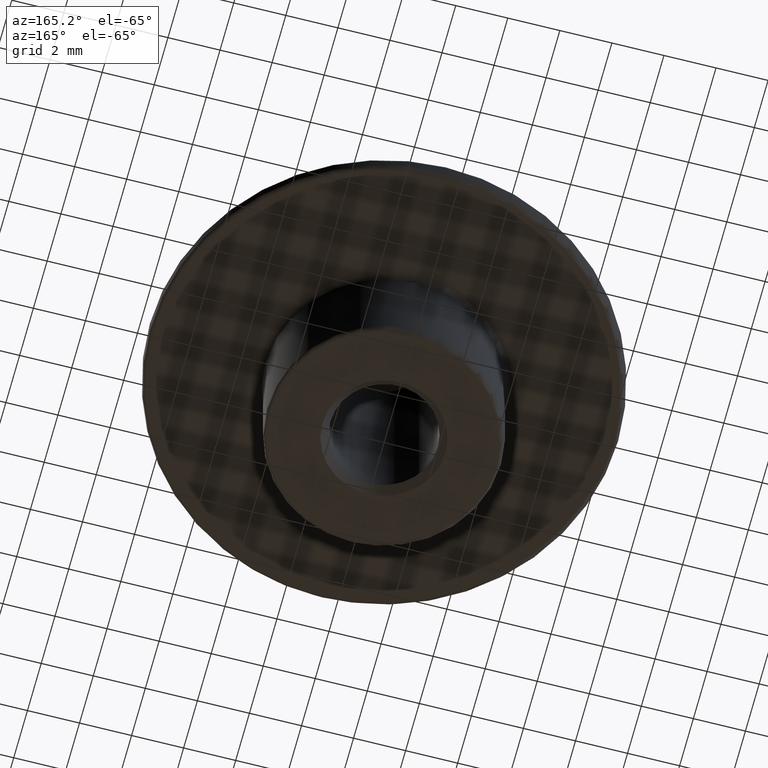
[diagram: clean part render]
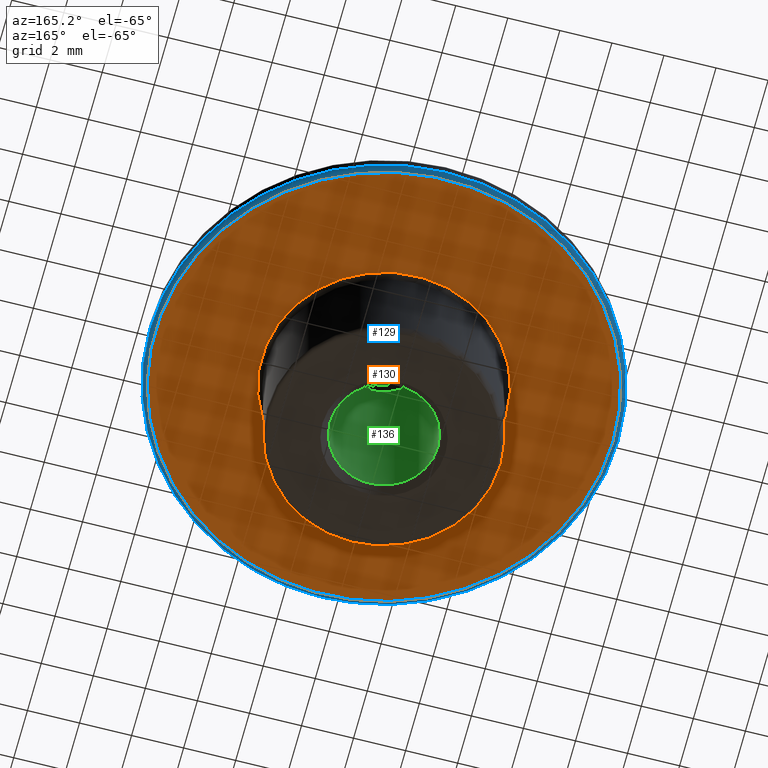
[diagram: same view with three faces highlighted in distinct colors, each labeled with its STEP entity id]
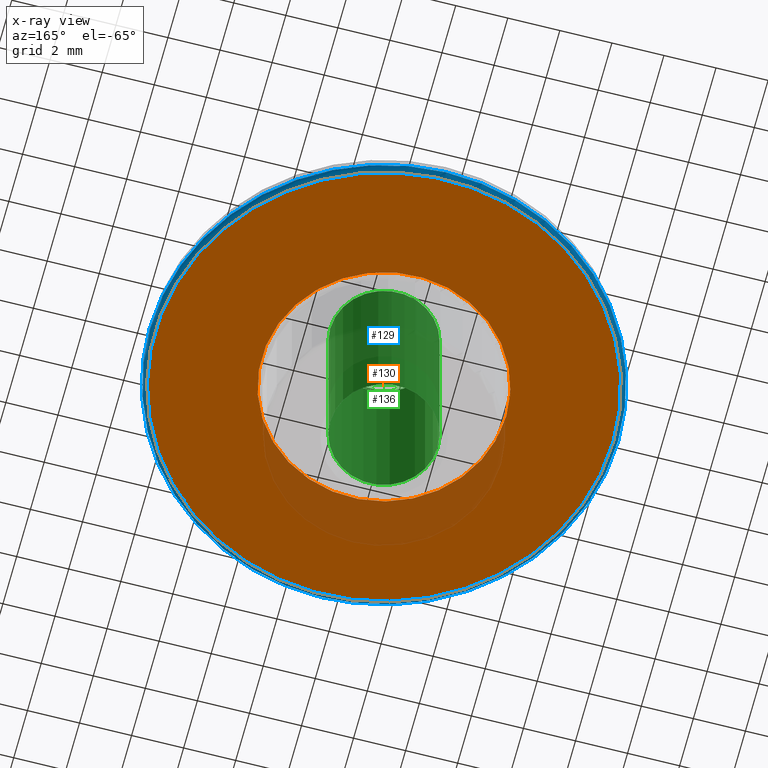
[diagram: x-ray of the same camera — body ghosted, the three highlighted faces saturated]
A machine part, auxiliary view with three faces highlighted in distinct colors.
The next image is the same camera in x-ray (body ghosted, the three faces saturated) — at least one of them is partly hidden behind the body in this view.
Their STEP definitions:

[orange] entity #130 — the highlighted planar face has unit normal (0, 0, 1).
#16=PLANE('',#148);
#26=FACE_BOUND('',#53,.T.);
#37=FACE_OUTER_BOUND('',#52,.T.);
#52=EDGE_LOOP('',(#107));
#53=EDGE_LOOP('',(#108));
#70=CIRCLE('',#147,8.79992883305196);
#71=CIRCLE('',#149,4.7);
#81=VERTEX_POINT('',#222);
#82=VERTEX_POINT('',#225);
#92=EDGE_CURVE('',#81,#81,#70,.T.);
#93=EDGE_CURVE('',#82,#82,#71,.T.);
#107=ORIENTED_EDGE('',*,*,#92,.F.);
#108=ORIENTED_EDGE('',*,*,#93,.F.);
#130=ADVANCED_FACE('',(#37,#26),#16,.F.);
#147=AXIS2_PLACEMENT_3D('',#223,#179,#180);
#148=AXIS2_PLACEMENT_3D('',#224,#181,#182);
#149=AXIS2_PLACEMENT_3D('',#226,#183,#184);
#179=DIRECTION('center_axis',(0.,0.,1.));
#180=DIRECTION('ref_axis',(1.,0.,0.));
#181=DIRECTION('center_axis',(0.,0.,1.));
#182=DIRECTION('ref_axis',(1.,0.,0.));
#183=DIRECTION('center_axis',(0.,0.,-1.));
#184=DIRECTION('ref_axis',(1.,0.,0.));
#222=CARTESIAN_POINT('',(-8.79992883305196,-1.07768046781216E-15,6.5));
#223=CARTESIAN_POINT('Origin',(0.,0.,6.5));
#224=CARTESIAN_POINT('Origin',(5.03044747988501E-16,2.05598482169455E-16,
6.5));
#225=CARTESIAN_POINT('',(-4.7,5.75583995599256E-16,6.5));
#226=CARTESIAN_POINT('Origin',(0.,0.,6.5));

[blue] entity #129 — the highlighted toroidal blend (fillet) surface has major radius 8.7999 mm and minor (blend) radius 0.2 mm.
#25=FACE_BOUND('',#51,.T.);
#36=FACE_OUTER_BOUND('',#50,.T.);
#50=EDGE_LOOP('',(#105));
#51=EDGE_LOOP('',(#106));
#69=CIRCLE('',#144,8.99992883305196);
#70=CIRCLE('',#147,8.79992883305196);
#80=VERTEX_POINT('',#218);
#81=VERTEX_POINT('',#222);
#91=EDGE_CURVE('',#80,#80,#69,.T.);
#92=EDGE_CURVE('',#81,#81,#70,.T.);
#105=ORIENTED_EDGE('',*,*,#91,.T.);
#106=ORIENTED_EDGE('',*,*,#92,.T.);
#123=TOROIDAL_SURFACE('',#146,8.79992883305196,0.2);
#129=ADVANCED_FACE('',(#36,#25),#123,.T.);
#144=AXIS2_PLACEMENT_3D('',#219,#173,#174);
#146=AXIS2_PLACEMENT_3D('',#221,#177,#178);
#147=AXIS2_PLACEMENT_3D('',#223,#179,#180);
#173=DIRECTION('center_axis',(0.,0.,-1.));
#174=DIRECTION('ref_axis',(1.,0.,0.));
#177=DIRECTION('center_axis',(0.,0.,-1.));
#178=DIRECTION('ref_axis',(-1.,0.,0.));
#179=DIRECTION('center_axis',(0.,0.,1.));
#180=DIRECTION('ref_axis',(1.,0.,0.));
#218=CARTESIAN_POINT('',(-8.99992883305196,1.10217340379511E-15,6.7));
#219=CARTESIAN_POINT('Origin',(0.,0.,6.7));
#221=CARTESIAN_POINT('Origin',(0.,0.,6.7));
#222=CARTESIAN_POINT('',(-8.79992883305196,-1.07768046781216E-15,6.5));
#223=CARTESIAN_POINT('Origin',(0.,0.,6.5));

[green] entity #136 — the highlighted cylindrical surface (bore or boss wall) has radius 2.067 mm, axis along (0, 0, -1).
#22=CYLINDRICAL_SURFACE('',#160,2.067);
#32=FACE_BOUND('',#65,.T.);
#43=FACE_OUTER_BOUND('',#64,.T.);
#64=EDGE_LOOP('',(#119));
#65=EDGE_LOOP('',(#120));
#76=CIRCLE('',#159,2.067);
#77=CIRCLE('',#161,2.067);
#87=VERTEX_POINT('',#240);
#88=VERTEX_POINT('',#243);
#98=EDGE_CURVE('',#87,#87,#76,.T.);
#99=EDGE_CURVE('',#88,#88,#77,.T.);
#119=ORIENTED_EDGE('',*,*,#99,.F.);
#120=ORIENTED_EDGE('',*,*,#98,.F.);
#136=ADVANCED_FACE('',(#43,#32),#22,.F.);
#159=AXIS2_PLACEMENT_3D('',#241,#203,#204);
#160=AXIS2_PLACEMENT_3D('',#242,#205,#206);
#161=AXIS2_PLACEMENT_3D('',#244,#207,#208);
#203=DIRECTION('center_axis',(0.,0.,1.));
#204=DIRECTION('ref_axis',(1.,0.,0.));
#205=DIRECTION('center_axis',(0.,0.,-1.));
#206=DIRECTION('ref_axis',(-1.,0.,0.));
#207=DIRECTION('center_axis',(0.,0.,-1.));
#208=DIRECTION('ref_axis',(-1.,0.,0.));
#240=CARTESIAN_POINT('',(-2.067,-2.53134493383758E-16,2.3));
#241=CARTESIAN_POINT('Origin',(0.,0.,2.3));
#242=CARTESIAN_POINT('Origin',(0.,0.,6.25));
#243=CARTESIAN_POINT('',(-2.067,0.,10.5));
#244=CARTESIAN_POINT('Origin',(0.,0.,10.5));